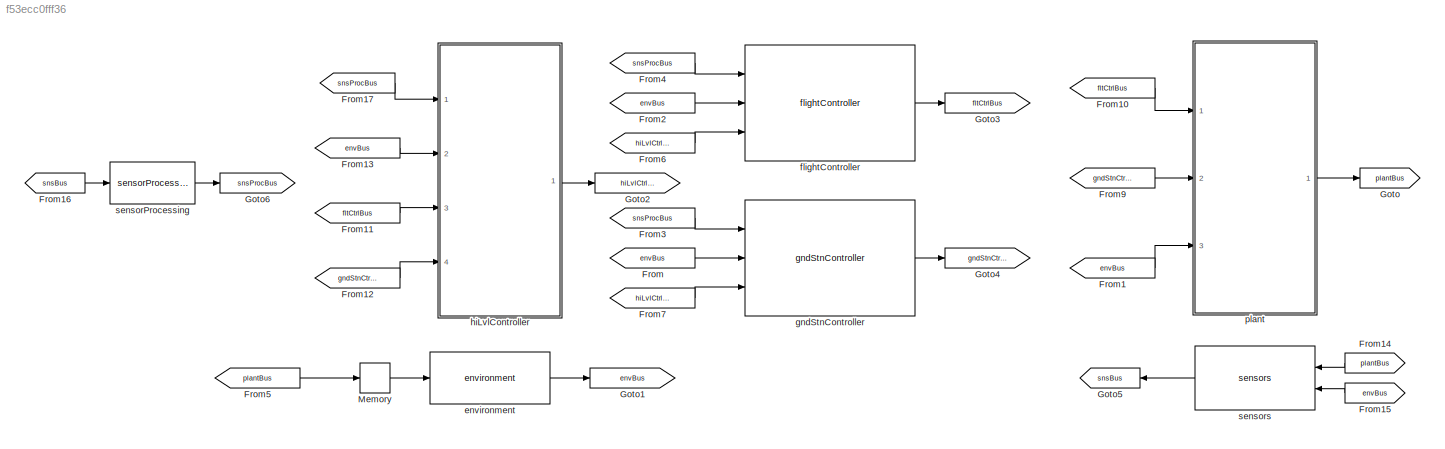
MODEL slx_f53ecc0fff36
KIND model
CONFIG AbsTol = auto
CONFIG EnableMultiTasking = off
CONFIG FixedStep = auto
CONFIG MaxStep = auto
CONFIG MinStep = auto
CONFIG RelTol = 1e-3
CONFIG SampleTimeConstraint = Unconstrained
CONFIG SolverName = ode15s
CONFIG StartTime = 0.0
CONFIG StopTime = duration_s
BLOCK [From] From
  GotoTag = envBus
BLOCK [From] From1
  GotoTag = envBus
BLOCK [From] From10
  GotoTag = fltCtrlBus
BLOCK [From] From11
  GotoTag = fltCtrlBus
BLOCK [From] From12
  GotoTag = gndStnCtrlBus
BLOCK [From] From13
  GotoTag = envBus
BLOCK [From] From14
  GotoTag = plantBus
BLOCK [From] From15
  GotoTag = envBus
BLOCK [From] From16
  GotoTag = snsBus
BLOCK [From] From17
  GotoTag = snsProcBus
BLOCK [From] From2
  GotoTag = envBus
BLOCK [From] From3
  GotoTag = snsProcBus
BLOCK [From] From4
  GotoTag = snsProcBus
BLOCK [From] From5
  GotoTag = plantBus
BLOCK [From] From6
  GotoTag = hiLvlCtrlBus
BLOCK [From] From7
  GotoTag = hiLvlCtrlBus
BLOCK [From] From9
  GotoTag = gndStnCtrlBus
BLOCK [Goto] Goto
  GotoTag = plantBus
BLOCK [Goto] Goto1
  GotoTag = envBus
BLOCK [Goto] Goto2
  GotoTag = hiLvlCtrlBus
BLOCK [Goto] Goto3
  GotoTag = fltCtrlBus
BLOCK [Goto] Goto4
  GotoTag = gndStnCtrlBus
BLOCK [Goto] Goto5
  GotoTag = snsBus
BLOCK [Goto] Goto6
  GotoTag = snsProcBus
BLOCK [Memory] Memory
BLOCK [Reference] environment  REF=environment_cl/environment  (lib defined in slx_47dae840ee41)
  Ports = [1, 1]
  SourceBlock = environment_cl/environment
  SourceType = SubSystem
BLOCK [Reference] flightController  REF=flightController_cl/flightController
  Ports = [3, 1]
  SourceBlock = flightController_cl/flightController
  SourceType = SubSystem
BLOCK [Reference] gndStnController  REF=gndStnController_cl/gndStnController
  Ports = [3, 1]
  SourceBlock = gndStnController_cl/gndStnController
  SourceType = SubSystem
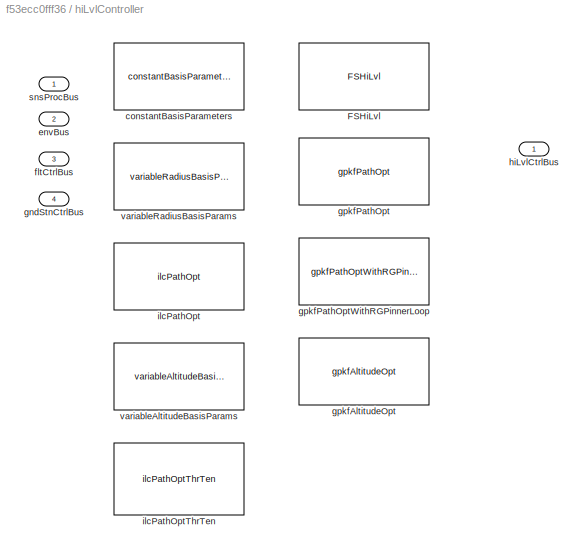
BLOCK [SubSystem] hiLvlController
  AncestorBlock = hiLvlController_cl/hiLvlController
  InitFcn = initializeVariantsFromBlock(gcb)
  LoadFcn = initializeVariantsFromBlock(gcb)
  Ports = [4, 1]
  RequestExecContextInheritance = off
  StartFcn = initializeVariantsFromBlock(gcb)
  Variant = on
BLOCK [Reference] hiLvlController/FSHiLvl  REF=FSHiLvl_cl/FSHiLvl
  Ports = [4, 1]
  SourceBlock = FSHiLvl_cl/FSHiLvl
BLOCK [Reference] hiLvlController/constantBasisParameters  REF=constantBasisParameters_cl/constantBasisParameters
  Ports = [4, 1]
  SourceBlock = constantBasisParameters_cl/constantBasisParameters
BLOCK [Inport] hiLvlController/envBus
  OutDataTypeStr = Bus: envBus
  Port = 2
BLOCK [Inport] hiLvlController/fltCtrlBus
  OutDataTypeStr = Bus: fltCtrlBus
  Port = 3
BLOCK [Inport] hiLvlController/gndStnCtrlBus
  OutDataTypeStr = Bus: gndStnCtrlBus
  Port = 4
BLOCK [Reference] hiLvlController/gpkfAltitudeOpt  REF=gpkfAltitudeOpt_cl/gpkfAltitudeOpt
  Ports = [4, 1]
  SourceBlock = gpkfAltitudeOpt_cl/gpkfAltitudeOpt
BLOCK [Reference] hiLvlController/gpkfPathOpt  REF=gpkfPathOpt_cl/gpkfPathOpt
  Ports = [4, 1]
  SourceBlock = gpkfPathOpt_cl/gpkfPathOpt
BLOCK [Reference] hiLvlController/gpkfPathOptWithRGPinnerLoop  REF=gpkfPathOptWithRGPinnerLoop_cl/gpkfPathOptWithRGPinnerLoop
  Ports = [4, 1]
  SourceBlock = gpkfPathOptWithRGPinnerLoop_cl/gpkfPathOptWithRGPinnerLoop
BLOCK [Outport] hiLvlController/hiLvlCtrlBus
  OutDataTypeStr = Bus: hiLvlCtrlBus
  VectorParamsAs1DForOutWhenUnconnected = off
BLOCK [Reference] hiLvlController/ilcPathOpt  REF=ilcPathOpt_cl/ilcPathOpt
  Ports = [4, 1]
  SourceBlock = ilcPathOpt_cl/ilcPathOpt
BLOCK [Reference] hiLvlController/ilcPathOptThrTen  REF=ilcPathOptThrTen_cl/ilcPathOptThrTen
  Ports = [4, 1]
  SourceBlock = ilcPathOptThrTen_cl/ilcPathOptThrTen
BLOCK [Inport] hiLvlController/snsProcBus
  OutDataTypeStr = Bus: sensorsProcessingBus
BLOCK [Reference] hiLvlController/variableAltitudeBasisParams  REF=variableAltitudeBasisParams_cl/variableAltitudeBasisParams
  Ports = [4, 1]
  SourceBlock = variableAltitudeBasisParams_cl/variableAltitudeBasisParams
BLOCK [Reference] hiLvlController/variableRadiusBasisParams  REF=variableRadiusBasisParams_cl/variableRadiusBasisParams
  Ports = [4, 1]
  SourceBlock = variableRadiusBasisParams_cl/variableRadiusBasisParams
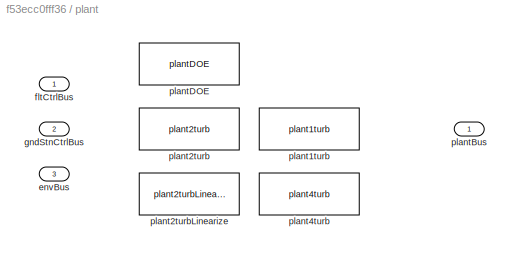
BLOCK [SubSystem] plant
  AncestorBlock = plant_cl/plant
  Ports = [3, 1]
  RequestExecContextInheritance = off
  Variant = on
BLOCK [Inport] plant/envBus
  Port = 3
BLOCK [Inport] plant/fltCtrlBus
BLOCK [Inport] plant/gndStnCtrlBus
  Port = 2
BLOCK [Reference] plant/plant1turb  REF=plant1turb_cl/plant1turb  (lib defined in slx_d1b030ec59a4)
  Ports = [3, 1]
  SourceBlock = plant1turb_cl/plant1turb
  SourceType = SubSystem
BLOCK [Reference] plant/plant2turb  REF=plant2turb_cl/plant2turb  (lib defined in slx_c9b2a0e40ab4)
  Ports = [3, 1]
  SourceBlock = plant2turb_cl/plant2turb
  SourceType = SubSystem
BLOCK [Reference] plant/plant2turbLinearize  REF=plant2turbLinearize_cl/plant2turbLinearize
  Ports = [3, 1]
  SourceBlock = plant2turbLinearize_cl/plant2turbLinearize
  SourceType = SubSystem
BLOCK [Reference] plant/plant4turb  REF=plant4turb_cl/plant4turb  (lib defined in slx_79f2409d4408)
  Ports = [3, 1]
  SourceBlock = plant4turb_cl/plant4turb
  SourceType = SubSystem
BLOCK [Outport] plant/plantBus
BLOCK [Reference] plant/plantDOE  REF=plantDOE_cl/plantDOE
  Ports = [3, 1]
  SourceBlock = plantDOE_cl/plantDOE
  SourceType = SubSystem
BLOCK [Reference] sensorProcessing  REF=sensorProcessing_cl/sensorProcessing
  Ports = [1, 1]
  SourceBlock = sensorProcessing_cl/sensorProcessing
  SourceType = SubSystem
BLOCK [Reference] sensors  REF=sensors_cl/sensors
  Ports = [2, 1]
  SourceBlock = sensors_cl/sensors
  SourceType = SubSystem
LINE From10:1 -> plant:1
LINE From11:1 -> hiLvlController:3
LINE From12:1 -> hiLvlController:4
LINE From13:1 -> hiLvlController:2
LINE From14:1 -> sensors:1
LINE From15:1 -> sensors:2
LINE From16:1 -> sensorProcessing:1
LINE From17:1 -> hiLvlController:1
LINE From1:1 -> plant:3
LINE From2:1 -> flightController:2
LINE From3:1 -> gndStnController:1
LINE From4:1 -> flightController:1
LINE From5:1 -> Memory:1
LINE From6:1 -> flightController:3
LINE From7:1 -> gndStnController:3
LINE From9:1 -> plant:2
LINE From:1 -> gndStnController:2
LINE Memory:1 -> environment:1
LINE environment:1 -> Goto1:1
LINE flightController:1 -> Goto3:1
LINE gndStnController:1 -> Goto4:1
LINE hiLvlController:1 -> Goto2:1
LINE plant:1 -> Goto:1
LINE sensorProcessing:1 -> Goto6:1
LINE sensors:1 -> Goto5:1
